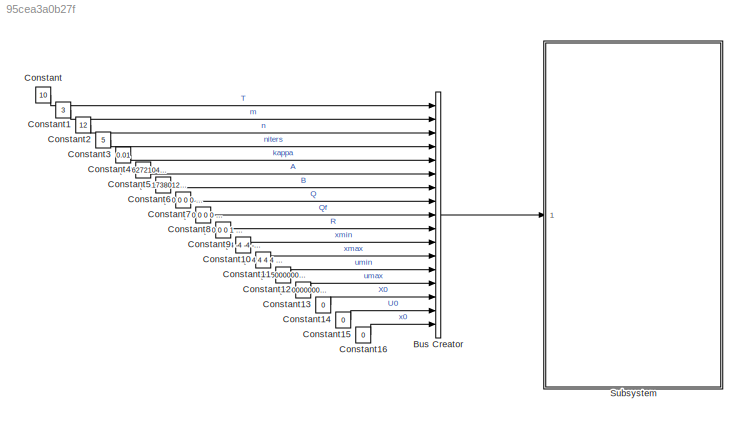
MODEL slx_95cea3a0b27f
KIND model
CONFIG AbsTol = auto
CONFIG EnableMultiTasking = off
CONFIG FixedStep = 0.2
CONFIG MaxStep = auto
CONFIG MinStep = auto
CONFIG RelTol = 1e-3
CONFIG SampleTimeConstraint = Unconstrained
CONFIG Solver = FixedStepDiscrete
CONFIG SolverName = FixedStepDiscrete
CONFIG StartTime = 0.0
CONFIG StopTime = 20.0
BLOCK [BusCreator] Bus Creator
  DisplayOption = bar
  InheritFromInputs = on
  Inputs = 17
  Ports = [17, 1]
BLOCK [Constant] Constant
  SampleTime = -1
  Value = 10
BLOCK [Constant] Constant1
  SampleTime = -1
  Value = 3
BLOCK [Constant] Constant10
  SampleTime = -1
  Value = [-4\n-4\n-4\n-4\n-4\n-4\n-4\n-4\n-4\n-4\n-4\n-4]
BLOCK [Constant] Constant11
  SampleTime = -1
  Value = [4\n4\n4\n4\n4\n4\n4\n4\n4\n4\n4\n4]
BLOCK [Constant] Constant12
  SampleTime = -1
  Value = [-0.500000000000000\n-0.500000000000000\n-0.500000000000000]
BLOCK [Constant] Constant13
  SampleTime = -1
  Value = [0.500000000000000\n0.500000000000000\n0.500000000000000]
BLOCK [Constant] Constant14
  SampleTime = -1
  Value = 0
BLOCK [Constant] Constant15
  SampleTime = -1
  Value = 0
BLOCK [Constant] Constant16
  SampleTime = -1
  Value = 0
BLOCK [Constant] Constant2
  OutDataTypeStr = int8
  SampleTime = -1
  Value = 12
BLOCK [Constant] Constant3
  SampleTime = -1
  Value = 5
BLOCK [Constant] Constant4
  SampleTime = -1
  Value = 0.01
BLOCK [Constant] Constant5
  SampleTime = -1
  Value = [0.762721047593857	0.114882546593898	0.00247654474066823	2.09380749408769e-05	9.42229417535085e-08	2.63060135287668e-10	0.459613939727602	0.0198131117128797	0.000251260056028671	1.50757506761672e-06	5.26123024735364e-09	1.19993006342024e-11\n0.114882546593898	0.765197592334525	0.114903484668839	0.00247663896360998	2.09383380010122e-05	9.42229417535096e-08	0.0198131117128796	0.459865199783630	0.0198...<+2417ch>
BLOCK [Constant] Constant6
  SampleTime = -1
  Value = [0.117380123896011	2.11270479473799e-05	9.47500646873726e-08\n-0.117401251208020	0.00251870461362123	2.11273120101163e-05\n-0.00249767205267819	0.119898828510133	0.00251870461462378\n-2.10328255067807e-05	5.01412713432847e-13	0.119898828774196\n-9.44870044752643e-08	-0.119898828246070	9.47505659474636e-08\n-2.63561428521144e-10	-0.00251860986355638	-0.119877701198123\n0.439800828014722	0.000251254794798...<+325ch>
BLOCK [Constant] Constant7
  SampleTime = -1
  Value = [1	0	0	0	0	0	0	0	0	0	0	0\n0	1	0	0	0	0	0	0	0	0	0	0\n0	0	1	0	0	0	0	0	0	0	0	0\n0	0	0	1	0	0	0	0	0	0	0	0\n0	0	0	0	1	0	0	0	0	0	0	0\n0	0	0	0	0	1	0	0	0	0	0	0\n0	0	0	0	0	0	1	0	0	0	0	0\n0	0	0	0	0	0	0	1	0	0	0	0\n0	0	0	0	0	0	0	0	1	0	0	0\n0	0	0	0	0	0	0	0	0	1	0	0\n0	0	0	0	0	0	0	0	0	0	1	0\n0	0	0	0	0	0	0	0	0	0	0	1]  <repeated x4 — deduplicated; at blocks: Constant7, Constant8>
BLOCK [Constant] Constant8
  SampleTime = -1
BLOCK [Constant] Constant9
  SampleTime = -1
  Value = [1	0	0\n0	1	0\n0	0	1]
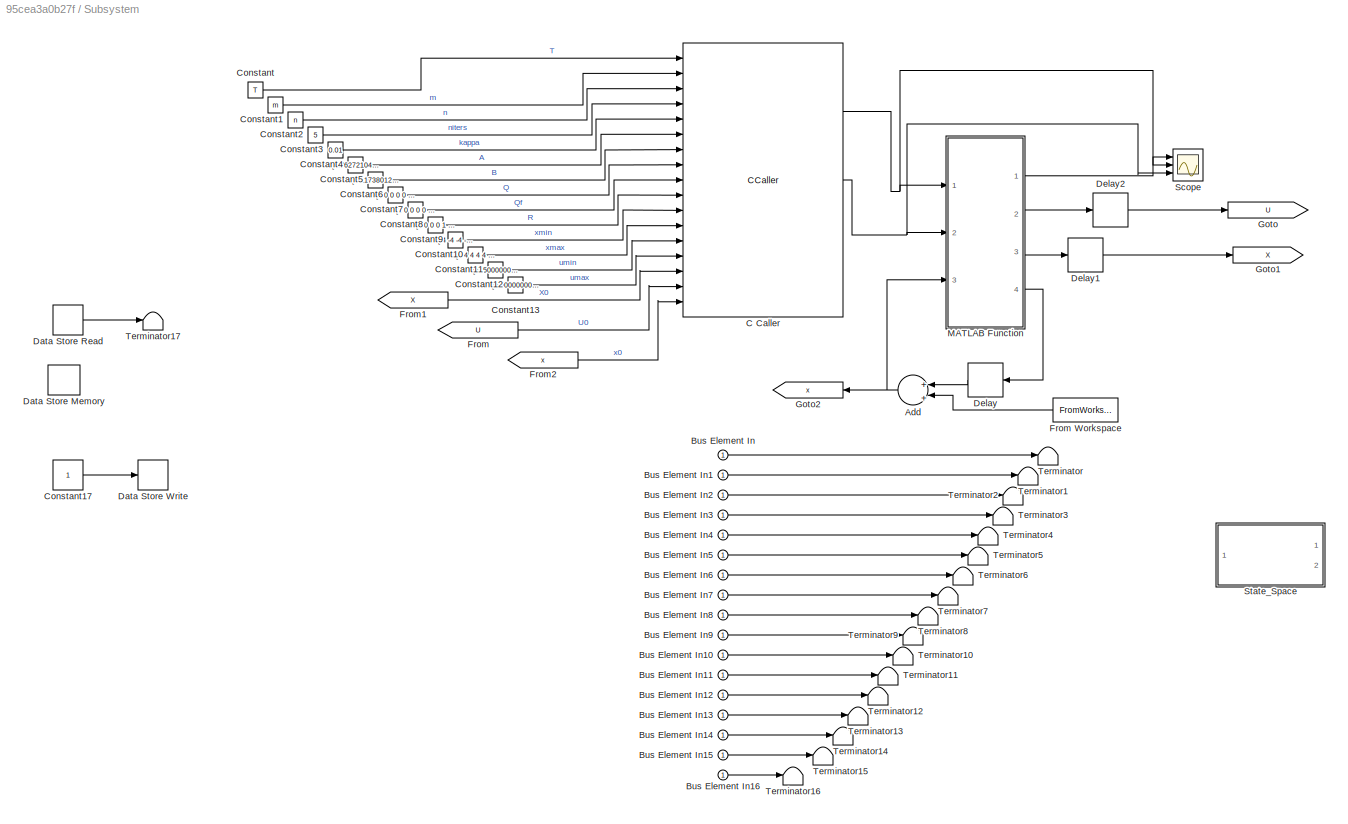
BLOCK [SubSystem] Subsystem
  Ports = [1]
  RequestExecContextInheritance = off
BLOCK [Sum] Subsystem/Add
  InputSameDT = off
  Inputs = +|+
  OutDataTypeStr = Inherit: Inherit via internal rule
  Ports = [2, 1]
  SaturateOnIntegerOverflow = off
BLOCK [Inport] Subsystem/Bus Element In
  IconDisplay = Port number
BLOCK [Inport] Subsystem/Bus Element In1
  IconDisplay = Port number
BLOCK [Inport] Subsystem/Bus Element In10
  IconDisplay = Port number
BLOCK [Inport] Subsystem/Bus Element In11
  IconDisplay = Port number
BLOCK [Inport] Subsystem/Bus Element In12
  IconDisplay = Port number
BLOCK [Inport] Subsystem/Bus Element In13
  IconDisplay = Port number
BLOCK [Inport] Subsystem/Bus Element In14
  IconDisplay = Port number
BLOCK [Inport] Subsystem/Bus Element In15
  IconDisplay = Port number
BLOCK [Inport] Subsystem/Bus Element In16
  IconDisplay = Port number
BLOCK [Inport] Subsystem/Bus Element In2
  IconDisplay = Port number
BLOCK [Inport] Subsystem/Bus Element In3
  IconDisplay = Port number
BLOCK [Inport] Subsystem/Bus Element In4
  IconDisplay = Port number
BLOCK [Inport] Subsystem/Bus Element In5
  IconDisplay = Port number
BLOCK [Inport] Subsystem/Bus Element In6
  IconDisplay = Port number
BLOCK [Inport] Subsystem/Bus Element In7
  IconDisplay = Port number
BLOCK [Inport] Subsystem/Bus Element In8
  IconDisplay = Port number
BLOCK [Inport] Subsystem/Bus Element In9
  IconDisplay = Port number
BLOCK [CCaller] Subsystem/C Caller
  FunctionName = mpc
  PortSpecificationStruct = %)30     .    P!P   8    (     @         %    "    !0    !     0         %  0 "0    $    V    07)G3F%M90  4&]R=$YA;64 4V-O<&4     26YD97@     5'EP90      4VEZ90         .    ,     8    (    !          %    "     $    #     0         0  , ;W5T  X    P    !@    @    $          4    (     0    ,    !         !   P!O=70 #@   #@    &    "     0         !0    @    !    !@    $         $     8   !/=71P=7...<+9429ch>
  Ports = [17, 3]
BLOCK [Constant] Subsystem/Constant
  OutDataTypeStr = Inherit: Inherit via back propagation
  SampleTime = -1
  Value = T
BLOCK [Constant] Subsystem/Constant1
  OutDataTypeStr = Inherit: Inherit via back propagation
  SampleTime = -1
  Value = m
BLOCK [Constant] Subsystem/Constant10
  OutDataTypeStr = Inherit: Inherit via back propagation
  SampleTime = -1
  Value = [-4\n-4\n-4\n-4\n-4\n-4\n-4\n-4\n-4\n-4\n-4\n-4]
BLOCK [Constant] Subsystem/Constant11
  OutDataTypeStr = Inherit: Inherit via back propagation
  SampleTime = -1
  Value = [4\n4\n4\n4\n4\n4\n4\n4\n4\n4\n4\n4]
BLOCK [Constant] Subsystem/Constant12
  OutDataTypeStr = Inherit: Inherit via back propagation
  SampleTime = -1
  Value = [-0.500000000000000\n-0.500000000000000\n-0.500000000000000]
BLOCK [Constant] Subsystem/Constant13
  OutDataTypeStr = Inherit: Inherit via back propagation
  SampleTime = -1
  Value = [0.500000000000000\n0.500000000000000\n0.500000000000000]
BLOCK [Constant] Subsystem/Constant17
BLOCK [Constant] Subsystem/Constant2
  OutDataTypeStr = Inherit: Inherit via back propagation
  SampleTime = -1
  Value = n
BLOCK [Constant] Subsystem/Constant3
  OutDataTypeStr = Inherit: Inherit via back propagation
  SampleTime = -1
  Value = 5
BLOCK [Constant] Subsystem/Constant4
  OutDataTypeStr = Inherit: Inherit via back propagation
  SampleTime = -1
  Value = 0.01
BLOCK [Constant] Subsystem/Constant5
  OutDataTypeStr = Inherit: Inherit via back propagation
  SampleTime = -1
  Value = [0.762721047593857	0.114882546593898	0.00247654474066823	2.09380749408769e-05	9.42229417535085e-08	2.63060135287668e-10	0.459613939727602	0.0198131117128797	0.000251260056028671	1.50757506761672e-06	5.26123024735364e-09	1.19993006342024e-11\n0.114882546593898	0.765197592334525	0.114903484668839	0.00247663896360998	2.09383380010122e-05	9.42229417535096e-08	0.0198131117128796	0.459865199783630	0.0198...<+2417ch>
BLOCK [Constant] Subsystem/Constant6
  OutDataTypeStr = Inherit: Inherit via back propagation
  SampleTime = -1
  Value = [0.117380123896011	2.11270479473799e-05	9.47500646873726e-08\n-0.117401251208020	0.00251870461362123	2.11273120101163e-05\n-0.00249767205267819	0.119898828510133	0.00251870461462378\n-2.10328255067807e-05	5.01412713432847e-13	0.119898828774196\n-9.44870044752643e-08	-0.119898828246070	9.47505659474636e-08\n-2.63561428521144e-10	-0.00251860986355638	-0.119877701198123\n0.439800828014722	0.000251254794798...<+325ch>
BLOCK [Constant] Subsystem/Constant7
  OutDataTypeStr = Inherit: Inherit via back propagation
  SampleTime = -1
BLOCK [Constant] Subsystem/Constant8
  OutDataTypeStr = Inherit: Inherit via back propagation
  SampleTime = -1
BLOCK [Constant] Subsystem/Constant9
  OutDataTypeStr = Inherit: Inherit via back propagation
  SampleTime = -1
  Value = [1	0	0\n0	1	0\n0	0	1]
BLOCK [DataStoreMemory] Subsystem/Data Store Memory
  LockScale = on
  ReadBeforeWriteMsg = warning
  ShowAdditionalParam = off
  VectorParams1D = off
  WriteAfterReadMsg = warning
  WriteAfterWriteMsg = warning
BLOCK [DataStoreRead] Subsystem/Data Store Read
  DataStoreElements = A(:,:)
  Ports = [0, 1]
BLOCK [DataStoreWrite] Subsystem/Data Store Write
  DataStoreElements = A
  Ports = [1]
BLOCK [Delay] Subsystem/Delay
  DelayLength = 1
  InitialCondition = x0
  InputPortMap = u0
  Ports = [1, 1]
BLOCK [Delay] Subsystem/Delay1
  DelayLength = 1
  InitialCondition = zeros(n,T)
  InputPortMap = u0
  Ports = [1, 1]
BLOCK [Delay] Subsystem/Delay2
  DelayLength = 1
  InitialCondition = zeros(m,T)
  InputPortMap = u0
  InputProcessing = Inherited
  Ports = [1, 1]
BLOCK [From] Subsystem/From
  GotoTag = U
BLOCK [FromWorkspace] Subsystem/From Workspace
  Commented = on
  OutputAfterFinalValue = Setting to zero
  SampleTime = 0.2
  VariableName = w
  ZeroCross = on
BLOCK [From] Subsystem/From1
  GotoTag = X
BLOCK [From] Subsystem/From2
  GotoTag = x
BLOCK [Goto] Subsystem/Goto
  GotoTag = U
BLOCK [Goto] Subsystem/Goto1
  GotoTag = X
BLOCK [Goto] Subsystem/Goto2
  GotoTag = x
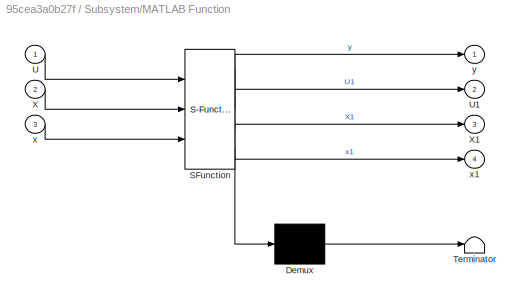
BLOCK [SubSystem] Subsystem/MATLAB Function
  ErrorFcn = Stateflow.Translate.translate
  PermitHierarchicalResolution = ExplicitOnly
  Ports = [3, 4]
  RequestExecContextInheritance = off
  SFBlockType = MATLAB Function
  TreatAsAtomicUnit = on
BLOCK [Demux] Subsystem/MATLAB Function/ Demux 
  Outputs = 1
  Ports = [1, 1]
BLOCK [S-Function] Subsystem/MATLAB Function/ SFunction 
  EnableBusSupport = on
  FunctionName = sf_sfun
  Parameters = A,B,T,m,n,x0
  PortCounts = [3 5]
  Ports = [3, 5]
  SFcnIsStateOwnerBlock = off
  SFunctionDeploymentMode = off
  Tag = Stateflow S-Function test_mdl 2
BLOCK [Terminator] Subsystem/MATLAB Function/ Terminator 
BLOCK [Inport] Subsystem/MATLAB Function/U
  IconDisplay = Port number
BLOCK [Outport] Subsystem/MATLAB Function/U1
  IconDisplay = Port number
  Port = 2
BLOCK [Inport] Subsystem/MATLAB Function/X
  IconDisplay = Port number
  Port = 2
BLOCK [Outport] Subsystem/MATLAB Function/X1
  IconDisplay = Port number
  Port = 3
BLOCK [Inport] Subsystem/MATLAB Function/x
  IconDisplay = Port number
  Port = 3
BLOCK [Outport] Subsystem/MATLAB Function/x1
  IconDisplay = Port number
  Port = 4
BLOCK [Outport] Subsystem/MATLAB Function/y
  IconDisplay = Port number
BLOCK [Scope] Subsystem/Scope
  Floating = off
  NumInputPorts = 3
  Ports = [3]
  ScopeSpecificationString = Simulink.scopes.TimeScopeBlockCfg('CurrentConfiguration', extmgr.ConfigurationSet(extmgr.Configuration('Core','General UI',true),extmgr.Configuration('Core','Source UI',true),extmgr.Configuration('Sources','WiredSimulink',true,'DataLoggingVariableName','ScopeData1'),extmgr.Configuration('Visuals','Time Domain',true,'SerializedDisplays',{struct('MinYLimReal','-1.00000','MaxYLimReal','1.00000','YLab...<+3857ch>
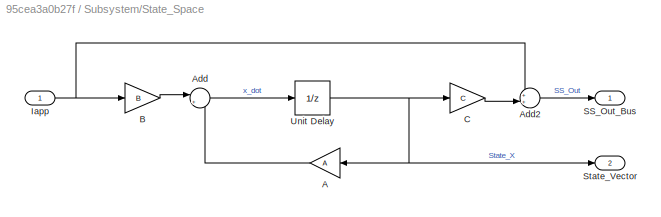
BLOCK [SubSystem] Subsystem/State_Space
  Commented = on
  Ports = [1, 2]
  RequestExecContextInheritance = off
BLOCK [Gain] Subsystem/State_Space/A
  Gain = A
  Multiplication = Matrix(K*u)
  OutDataTypeStr = Inherit: Inherit via internal rule
  ParamDataTypeStr = Inherit: Inherit via internal rule
  SaturateOnIntegerOverflow = off
BLOCK [Sum] Subsystem/State_Space/Add
  IconShape = round
  InputSameDT = off
  Inputs = |++
  OutDataTypeStr = Inherit: Inherit via internal rule
  Ports = [2, 1]
  SaturateOnIntegerOverflow = off
BLOCK [Sum] Subsystem/State_Space/Add2
  IconShape = round
  InputSameDT = off
  Inputs = ++|
  OutDataTypeStr = Inherit: Inherit via internal rule
  Ports = [2, 1]
  SaturateOnIntegerOverflow = off
BLOCK [Gain] Subsystem/State_Space/B
  Gain = B
  Multiplication = Matrix(K*u)
  OutDataTypeStr = Inherit: Inherit via internal rule
  ParamDataTypeStr = Inherit: Inherit via internal rule
  SaturateOnIntegerOverflow = off
BLOCK [Gain] Subsystem/State_Space/C
  Gain = C
  Multiplication = Matrix(K*u)
  OutDataTypeStr = Inherit: Inherit via internal rule
  ParamDataTypeStr = Inherit: Inherit via internal rule
  SaturateOnIntegerOverflow = off
BLOCK [Inport] Subsystem/State_Space/Iapp
  IconDisplay = Port number
BLOCK [Outport] Subsystem/State_Space/SS_Out_Bus
  IconDisplay = Port number
BLOCK [Outport] Subsystem/State_Space/State_Vector
  IconDisplay = Port number
  Port = 2
BLOCK [UnitDelay] Subsystem/State_Space/Unit Delay
  InputProcessing = Elements as channels (sample based)
  SampleTime = -1
BLOCK [Terminator] Subsystem/Terminator
BLOCK [Terminator] Subsystem/Terminator1
BLOCK [Terminator] Subsystem/Terminator10
BLOCK [Terminator] Subsystem/Terminator11
BLOCK [Terminator] Subsystem/Terminator12
BLOCK [Terminator] Subsystem/Terminator13
BLOCK [Terminator] Subsystem/Terminator14
BLOCK [Terminator] Subsystem/Terminator15
BLOCK [Terminator] Subsystem/Terminator16
BLOCK [Terminator] Subsystem/Terminator17
BLOCK [Terminator] Subsystem/Terminator2
BLOCK [Terminator] Subsystem/Terminator3
BLOCK [Terminator] Subsystem/Terminator4
BLOCK [Terminator] Subsystem/Terminator5
BLOCK [Terminator] Subsystem/Terminator6
BLOCK [Terminator] Subsystem/Terminator7
BLOCK [Terminator] Subsystem/Terminator8
BLOCK [Terminator] Subsystem/Terminator9
LINE Bus Creator:1 -> Subsystem:1
LINE Constant10:1 -> Bus Creator:11
LINE Constant11:1 -> Bus Creator:12
LINE Constant12:1 -> Bus Creator:13
LINE Constant13:1 -> Bus Creator:14
LINE Constant14:1 -> Bus Creator:15
LINE Constant15:1 -> Bus Creator:16
LINE Constant16:1 -> Bus Creator:17
LINE Constant1:1 -> Bus Creator:2
LINE Constant2:1 -> Bus Creator:3
LINE Constant3:1 -> Bus Creator:4
LINE Constant4:1 -> Bus Creator:5
LINE Constant5:1 -> Bus Creator:6
LINE Constant6:1 -> Bus Creator:7
LINE Constant7:1 -> Bus Creator:8
LINE Constant8:1 -> Bus Creator:9
LINE Constant9:1 -> Bus Creator:10
LINE Constant:1 -> Bus Creator:1
NET Subsystem/Add:1 -> Subsystem/Goto2:1, Subsystem/MATLAB Function:3
LINE Subsystem/Bus Element In10:1 -> Subsystem/Terminator10:1
LINE Subsystem/Bus Element In11:1 -> Subsystem/Terminator11:1
LINE Subsystem/Bus Element In12:1 -> Subsystem/Terminator12:1
LINE Subsystem/Bus Element In13:1 -> Subsystem/Terminator13:1
LINE Subsystem/Bus Element In14:1 -> Subsystem/Terminator14:1
LINE Subsystem/Bus Element In15:1 -> Subsystem/Terminator15:1
LINE Subsystem/Bus Element In16:1 -> Subsystem/Terminator16:1
LINE Subsystem/Bus Element In1:1 -> Subsystem/Terminator1:1
LINE Subsystem/Bus Element In2:1 -> Subsystem/Terminator2:1
LINE Subsystem/Bus Element In3:1 -> Subsystem/Terminator3:1
LINE Subsystem/Bus Element In4:1 -> Subsystem/Terminator4:1
LINE Subsystem/Bus Element In5:1 -> Subsystem/Terminator5:1
LINE Subsystem/Bus Element In6:1 -> Subsystem/Terminator6:1
LINE Subsystem/Bus Element In7:1 -> Subsystem/Terminator7:1
LINE Subsystem/Bus Element In8:1 -> Subsystem/Terminator8:1
LINE Subsystem/Bus Element In9:1 -> Subsystem/Terminator9:1
LINE Subsystem/Bus Element In:1 -> Subsystem/Terminator:1
NET Subsystem/C Caller:1 -> Subsystem/MATLAB Function:1, Subsystem/Scope:2
NET Subsystem/C Caller:2 -> Subsystem/MATLAB Function:2, Subsystem/Scope:3
LINE Subsystem/Constant10:1 -> Subsystem/C Caller:11
LINE Subsystem/Constant11:1 -> Subsystem/C Caller:12
LINE Subsystem/Constant12:1 -> Subsystem/C Caller:13
LINE Subsystem/Constant13:1 -> Subsystem/C Caller:14
LINE Subsystem/Constant17:1 -> Subsystem/Data Store Write:1
LINE Subsystem/Constant1:1 -> Subsystem/C Caller:2
LINE Subsystem/Constant2:1 -> Subsystem/C Caller:3
LINE Subsystem/Constant3:1 -> Subsystem/C Caller:4
LINE Subsystem/Constant4:1 -> Subsystem/C Caller:5
LINE Subsystem/Constant5:1 -> Subsystem/C Caller:6
LINE Subsystem/Constant6:1 -> Subsystem/C Caller:7
LINE Subsystem/Constant7:1 -> Subsystem/C Caller:8
LINE Subsystem/Constant8:1 -> Subsystem/C Caller:9
LINE Subsystem/Constant9:1 -> Subsystem/C Caller:10
LINE Subsystem/Constant:1 -> Subsystem/C Caller:1
LINE Subsystem/Data Store Read:1 -> Subsystem/Terminator17:1
LINE Subsystem/Delay1:1 -> Subsystem/Goto1:1
LINE Subsystem/Delay2:1 -> Subsystem/Goto:1
LINE Subsystem/Delay:1 -> Subsystem/Add:1
LINE Subsystem/From Workspace:1 -> Subsystem/Add:2
LINE Subsystem/From1:1 -> Subsystem/C Caller:15
LINE Subsystem/From2:1 -> Subsystem/C Caller:17
LINE Subsystem/From:1 -> Subsystem/C Caller:16
LINE Subsystem/MATLAB Function:1 -> Subsystem/Scope:1
LINE Subsystem/MATLAB Function:2 -> Subsystem/Delay2:1
LINE Subsystem/MATLAB Function:3 -> Subsystem/Delay1:1
LINE Subsystem/MATLAB Function:4 -> Subsystem/Delay:1
LINE Subsystem/State_Space/A:1 -> Subsystem/State_Space/Add:2
LINE Subsystem/State_Space/Add2:1 -> Subsystem/State_Space/SS_Out_Bus:1
LINE Subsystem/State_Space/Add:1 -> Subsystem/State_Space/Unit Delay:1
LINE Subsystem/State_Space/B:1 -> Subsystem/State_Space/Add:1
LINE Subsystem/State_Space/C:1 -> Subsystem/State_Space/Add2:2
NET Subsystem/State_Space/Iapp:1 -> Subsystem/State_Space/Add2:1, Subsystem/State_Space/B:1
NET Subsystem/State_Space/Unit Delay:1 -> Subsystem/State_Space/A:1, Subsystem/State_Space/C:1, Subsystem/State_Space/State_Vector:1
note: NET lines group one-source signal fan-out (src -> all destinations, sorted); 1:1 wires keep LINE
CHART Subsystem/MATLAB Function states=1 transitions=1
  STATE_LABEL 'eML_blk_kernel()'
  STATE_LABEL 'SCRIPT:\nfunction [y,U1,X1,x1] = fcn(U,X,x, A, T, B, n, m, x0)\nu = U(:,1);\n\nx1 =A*x+B*u;\nX1 = [X(:,2:10),zeros(12,1)];\nU1 = [U(:,2:10),zeros(3,1)];\n\ny = u;\n'
